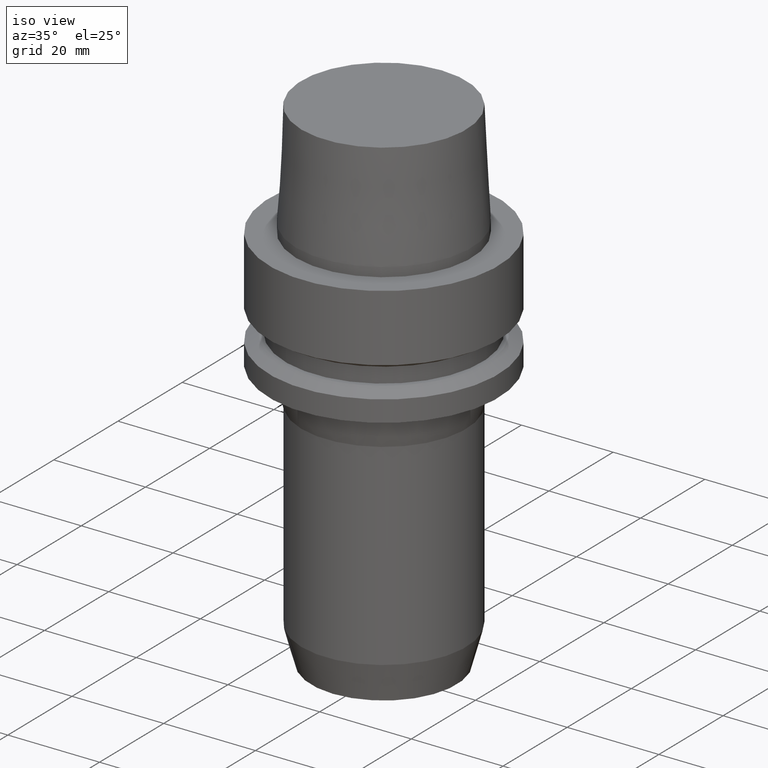
[diagram: clean part render]
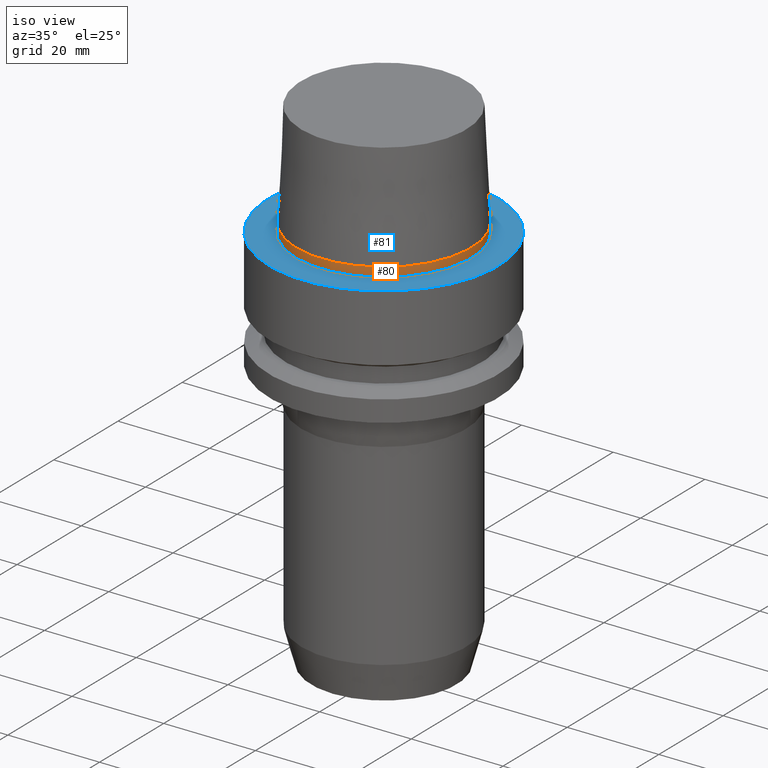
[diagram: same view with the hole feature highlighted: cylindrical wall and planar end face, labeled with their STEP entity ids]
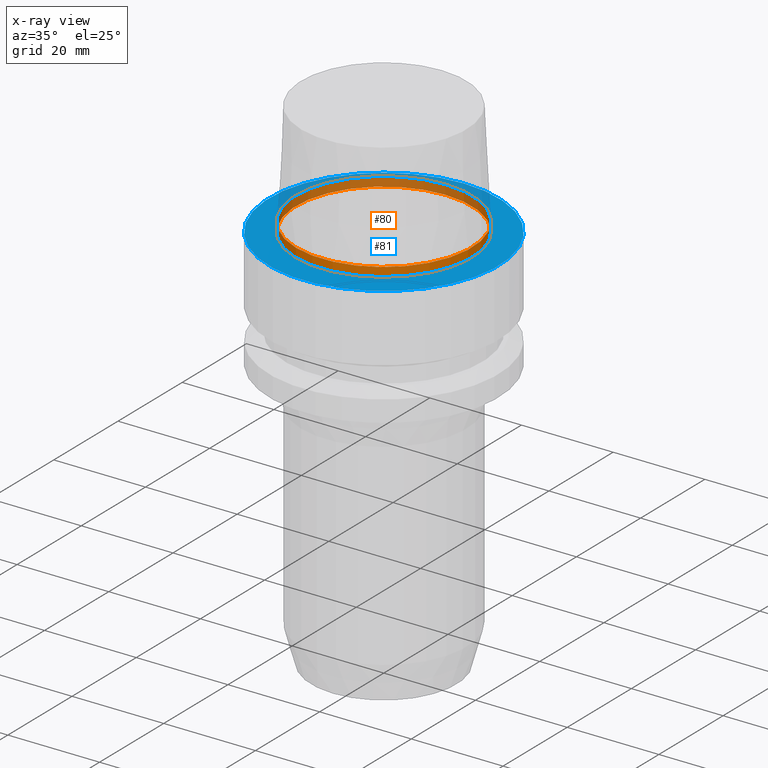
[diagram: x-ray of the same camera — body ghosted, the hole faces saturated]
A machine part, iso view. The highlighted faces form one hole feature of diameter 38.3 mm: the cylindrical wall (entity #80, orange) and its adjacent planar end face (entity #81, blue) — they share a circular edge in the B-rep.
The next image is the same camera in x-ray (body ghosted, the hole faces saturated) — the bore reads through the body.
Wall:
#80=ADVANCED_FACE('',(#105,#106),#107,.T.);
#105=FACE_BOUND('',#151,.T.);
#106=FACE_BOUND('',#152,.T.);
#107=CYLINDRICAL_SURFACE('',#153,19.15);
#151=EDGE_LOOP('',(#207));
#152=EDGE_LOOP('',(#208));
#153=AXIS2_PLACEMENT_3D('',#209,#210,#211);
#207=ORIENTED_EDGE('',*,*,#267,.F.);
#208=ORIENTED_EDGE('',*,*,#266,.T.);
#209=CARTESIAN_POINT('',(-6.12323399573677E-017,-1.22464679914735E-016,1.0));
#210=DIRECTION('',(-6.12323399573677E-017,-1.22464679914735E-016,1.0));
#211=DIRECTION('',(-1.23259516440783E-032,1.0,1.22464679914735E-016));
#266=EDGE_CURVE('',#285,#285,#286,.T.);
#267=EDGE_CURVE('',#287,#287,#288,.T.);
#285=VERTEX_POINT('',#315);
#286=CIRCLE('',#316,19.15);
#287=VERTEX_POINT('',#317);
#288=CIRCLE('',#318,19.15);
#315=CARTESIAN_POINT('',(-1.22464679914736E-016,19.15,2.0));
#316=AXIS2_PLACEMENT_3D('',#349,#350,#351);
#317=CARTESIAN_POINT('',(-2.360419739841E-031,19.15,2.34519862036718E-015));
#318=AXIS2_PLACEMENT_3D('',#352,#353,#354);
#349=CARTESIAN_POINT('',(-1.22464679914735E-016,-2.44929359829471E-016,2.0));
#350=DIRECTION('',(6.12323399573677E-017,1.22464679914735E-016,-1.0));
#351=DIRECTION('',(-1.23259516440783E-032,1.0,1.22464679914735E-016));
#352=CARTESIAN_POINT('',(0.0,0.0,0.0));
#353=DIRECTION('',(6.12323399573677E-017,1.22464679914735E-016,-1.0));
#354=DIRECTION('',(-1.23259516440783E-032,1.0,1.22464679914735E-016));
End face:
#81=ADVANCED_FACE('',(#108,#109),#110,.T.);
#108=FACE_OUTER_BOUND('',#154,.T.);
#109=FACE_BOUND('',#155,.T.);
#110=PLANE('',#156);
#154=EDGE_LOOP('',(#212));
#155=EDGE_LOOP('',(#213));
#156=AXIS2_PLACEMENT_3D('',#214,#215,#216);
#212=ORIENTED_EDGE('',*,*,#268,.F.);
#213=ORIENTED_EDGE('',*,*,#267,.T.);
#214=CARTESIAN_POINT('',(-2.72095382543029E-031,22.075,2.70340780911778E-015));
#215=DIRECTION('',(-6.12323399573677E-017,-1.22464679914735E-016,1.0));
#216=DIRECTION('',(1.23259516440783E-032,-1.0,-1.22464679914735E-016));
#267=EDGE_CURVE('',#287,#287,#288,.T.);
#268=EDGE_CURVE('',#289,#289,#290,.T.);
#287=VERTEX_POINT('',#317);
#288=CIRCLE('',#318,19.15);
#289=VERTEX_POINT('',#319);
#290=CIRCLE('',#320,25.0);
#317=CARTESIAN_POINT('',(-2.360419739841E-031,19.15,2.34519862036718E-015));
#318=AXIS2_PLACEMENT_3D('',#352,#353,#354);
#319=CARTESIAN_POINT('',(-3.08148791101958E-031,25.0,3.06161699786838E-015));
#320=AXIS2_PLACEMENT_3D('',#355,#356,#357);
#352=CARTESIAN_POINT('',(0.0,0.0,0.0));
#353=DIRECTION('',(6.12323399573677E-017,1.22464679914735E-016,-1.0));
#354=DIRECTION('',(-1.23259516440783E-032,1.0,1.22464679914735E-016));
#355=CARTESIAN_POINT('',(0.0,0.0,0.0));
#356=DIRECTION('',(6.12323399573677E-017,1.22464679914735E-016,-1.0));
#357=DIRECTION('',(-1.23259516440783E-032,1.0,1.22464679914735E-016));